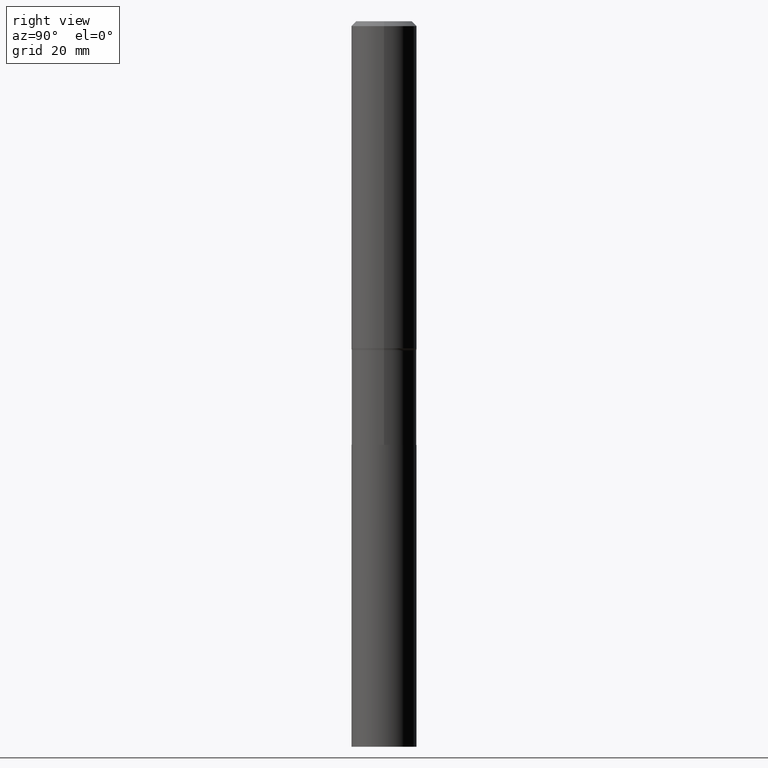
[diagram: clean part render]
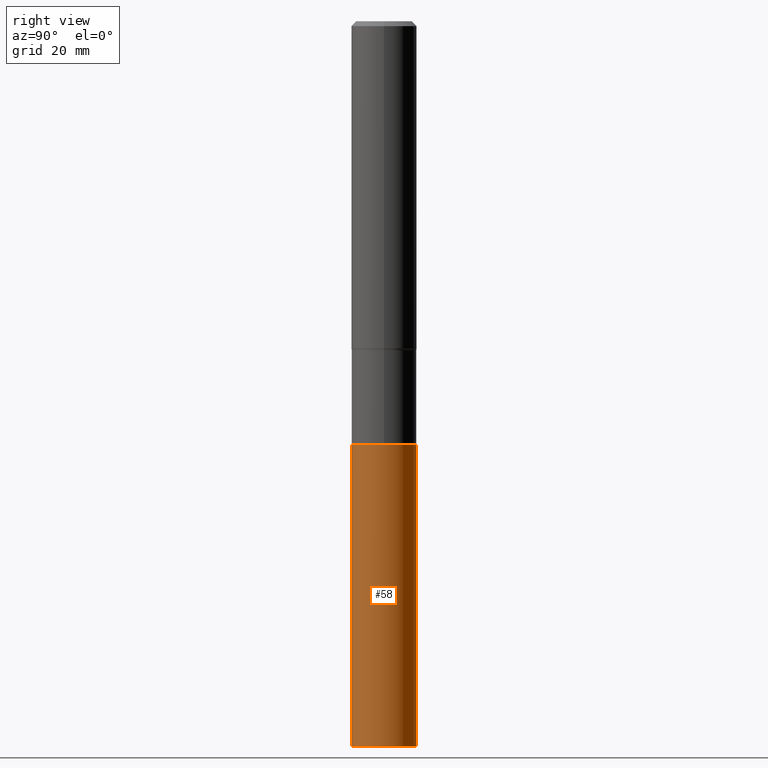
[diagram: same view with one face highlighted and labeled with its STEP entity id]
A machine part, right view. The second image highlights one B-rep face of the part: STEP entity #58.
In plain terms, the highlighted cylindrical surface (edge-blend (fillet) strip) has radius 6.9456 mm, axis along (-0, 0, 1).
Its self-contained STEP definition (entity closure, byte-faithful):
#25 = CARTESIAN_POINT ( 'NONE',  ( -1.909491144213222460E-15, -0.2734500000000124609, -3.563399999999998791 ) ) ;
#38 = DIRECTION ( 'NONE',  ( -2.445078219404103595E-29, 3.492040681344403296E-15, 1.000000000000000000 ) ) ;
#39 = VERTEX_POINT ( 'NONE', #312 ) ;
#42 = CARTESIAN_POINT ( 'NONE',  ( 8.714183543960115944E-29, -1.244154460283366546E-14, -3.563400000000000123 ) ) ;
#55 = FACE_OUTER_BOUND ( 'NONE', #302, .T. ) ;
#58 = ADVANCED_FACE ( 'NONE', ( #55 ), #205, .T. ) ;
#68 = CARTESIAN_POINT ( 'NONE',  ( 1.942979110936112080E-15, 0.2734499999999787101, -6.102400000000002045 ) ) ;
#89 = DIRECTION ( 'NONE',  ( -6.982962677686265922E-15, -1.000000000000000000, 3.996120670929621909E-15 ) ) ;
#104 = AXIS2_PLACEMENT_3D ( 'NONE', #125, #172, #315 ) ;
#113 = VECTOR ( 'NONE', #38, 39.37007874015748143 ) ;
#125 = CARTESIAN_POINT ( 'NONE',  ( 8.714183543960115944E-29, -1.244154460283366546E-14, -3.563400000000000123 ) ) ;
#136 = CARTESIAN_POINT ( 'NONE',  ( 1.942979110936080920E-15, 0.2734499999999875919, -3.563400000000001011 ) ) ;
#137 = EDGE_CURVE ( 'NONE', #333, #260, #359, .T. ) ;
#150 = AXIS2_PLACEMENT_3D ( 'NONE', #163, #316, #89 ) ;
#153 = EDGE_CURVE ( 'NONE', #333, #39, #166, .T. ) ;
#163 = CARTESIAN_POINT ( 'NONE',  ( 1.492223714302713929E-28, -2.130783589276710899E-14, -6.102400000000001157 ) ) ;
#166 = LINE ( 'NONE', #25, #420 ) ;
#171 = DIRECTION ( 'NONE',  ( -2.445078219404103595E-29, 3.492040681344403296E-15, 1.000000000000000000 ) ) ;
#172 = DIRECTION ( 'NONE',  ( -2.445078219404103595E-29, 3.492040681344403691E-15, 1.000000000000000000 ) ) ;
#205 = CYLINDRICAL_SURFACE ( 'NONE', #104, 0.2734500000000000264 ) ;
#217 = LINE ( 'NONE', #136, #113 ) ;
#229 = CIRCLE ( 'NONE', #465, 0.2734500000000000264 ) ;
#244 = ORIENTED_EDGE ( 'NONE', *, *, #269, .T. ) ;
#260 = VERTEX_POINT ( 'NONE', #68 ) ;
#261 = CARTESIAN_POINT ( 'NONE',  ( 1.942979110936143635E-15, 0.2734499999999875919, -3.563400000000001011 ) ) ;
#266 = ORIENTED_EDGE ( 'NONE', *, *, #443, .F. ) ;
#269 = EDGE_CURVE ( 'NONE', #260, #338, #217, .T. ) ;
#297 = ORIENTED_EDGE ( 'NONE', *, *, #153, .F. ) ;
#302 = EDGE_LOOP ( 'NONE', ( #436, #244, #266, #297 ) ) ;
#311 = DIRECTION ( 'NONE',  ( -2.445078219404103595E-29, 3.492040681344403691E-15, 1.000000000000000000 ) ) ;
#312 = CARTESIAN_POINT ( 'NONE',  ( -1.909491144213222460E-15, -0.2734500000000124609, -3.563399999999998791 ) ) ;
#315 = DIRECTION ( 'NONE',  ( -6.982962677686265922E-15, -1.000000000000000000, 3.996120670929621909E-15 ) ) ;
#316 = DIRECTION ( 'NONE',  ( -2.445078219404103595E-29, 3.492040681344403691E-15, 1.000000000000000000 ) ) ;
#330 = CARTESIAN_POINT ( 'NONE',  ( -1.909491144213160534E-15, -0.2734500000000213427, -6.102400000000000269 ) ) ;
#333 = VERTEX_POINT ( 'NONE', #330 ) ;
#338 = VERTEX_POINT ( 'NONE', #261 ) ;
#359 = CIRCLE ( 'NONE', #150, 0.2734500000000000264 ) ;
#420 = VECTOR ( 'NONE', #171, 39.37007874015748143 ) ;
#436 = ORIENTED_EDGE ( 'NONE', *, *, #137, .T. ) ;
#441 = DIRECTION ( 'NONE',  ( -6.982962677686265922E-15, -1.000000000000000000, 3.996120670929621909E-15 ) ) ;
#443 = EDGE_CURVE ( 'NONE', #39, #338, #229, .T. ) ;
#465 = AXIS2_PLACEMENT_3D ( 'NONE', #42, #311, #441 ) ;